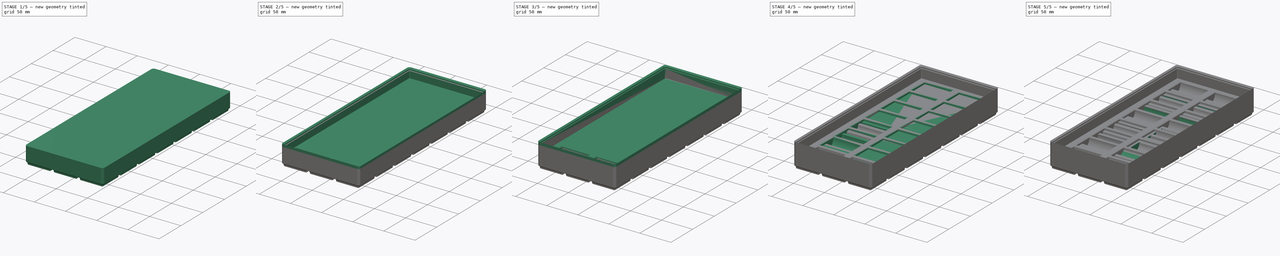
[diagram: build sequence overview — one tinted view per stage of 5, left to right]
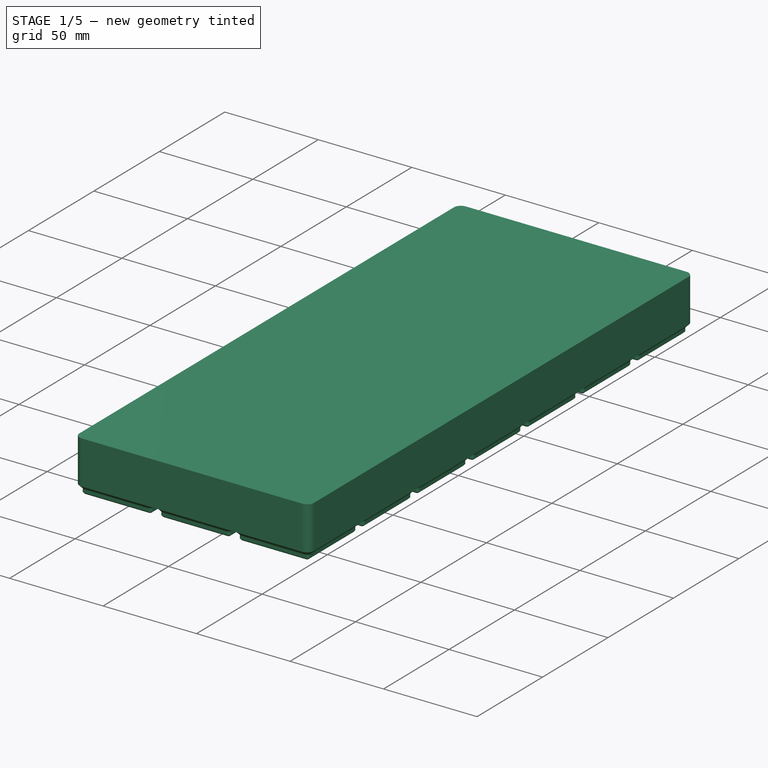
[diagram: stage 1 of 5 — iso view after this stage's code; geometry added in this stage tinted green]
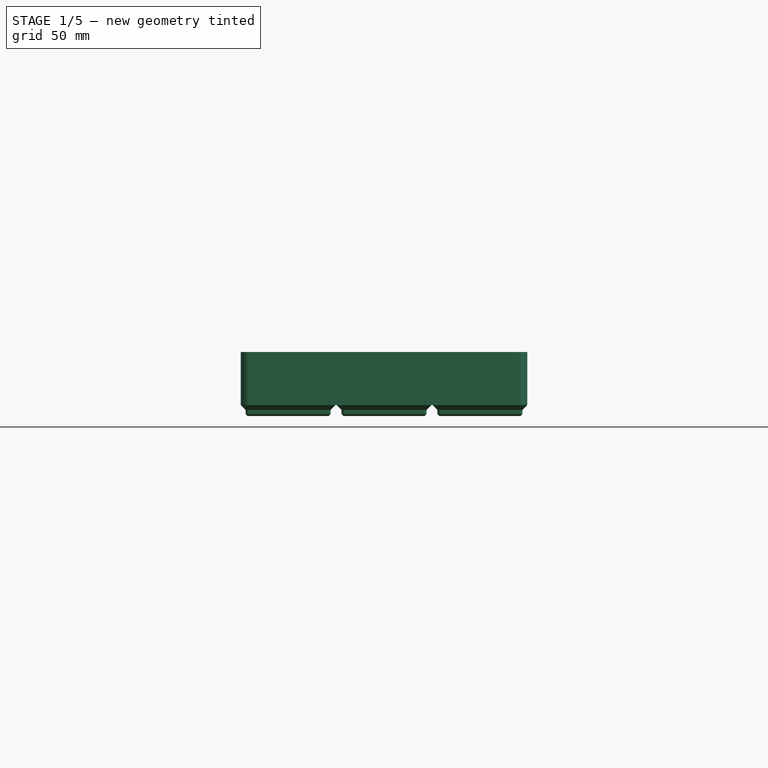
[diagram: stage 1 of 5 — front view after this stage's code; geometry added in this stage tinted green]
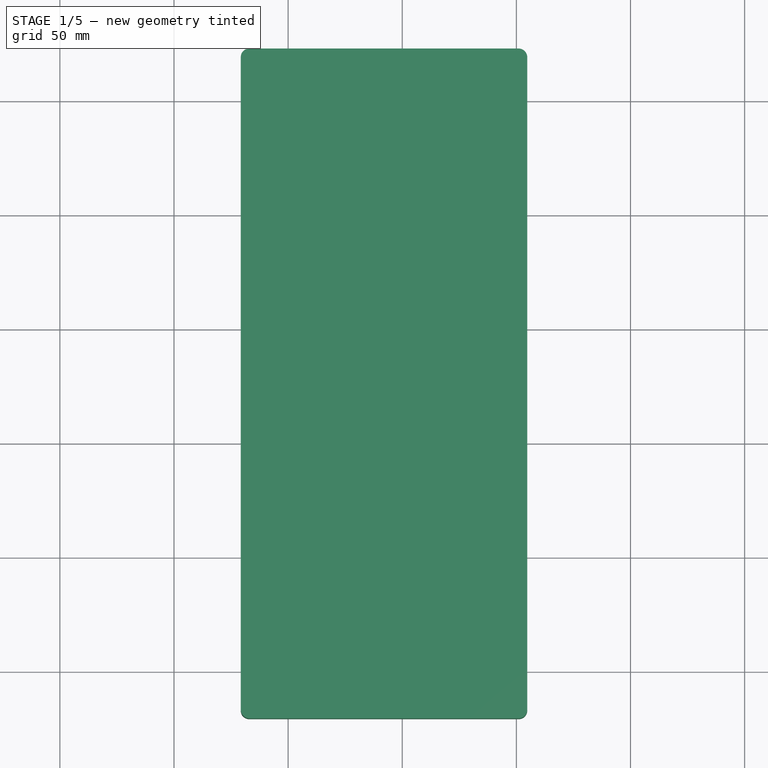
[diagram: stage 1 of 5 — top view after this stage's code; geometry added in this stage tinted green]
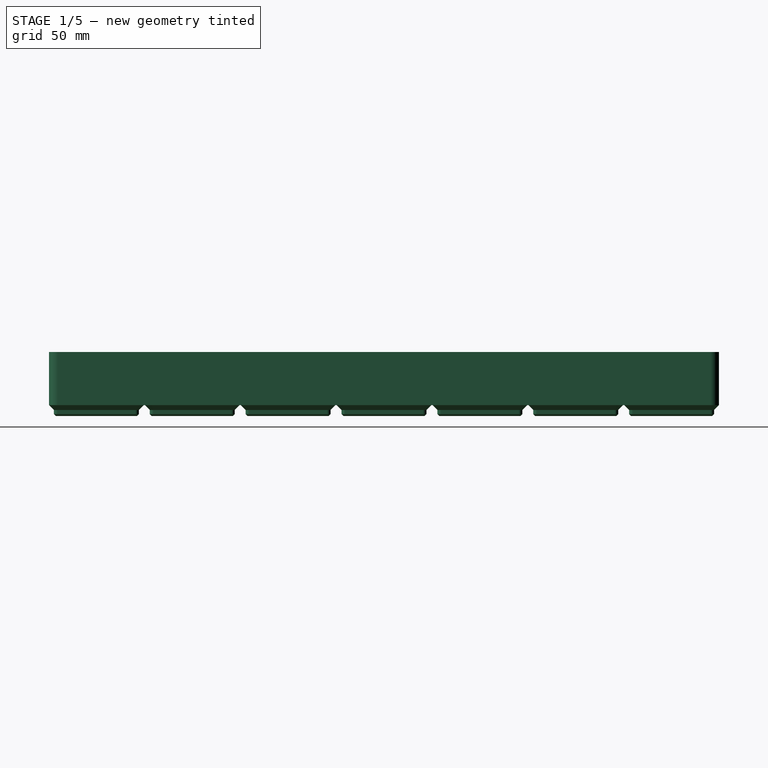
[diagram: stage 1 of 5 — right view after this stage's code; geometry added in this stage tinted green]
FCSTD DOCUMENT  (FreeCAD 1.1R20260108 (Git shallow))
Label: Gridfinity thread spol tray
License: Creative Commons Attribution 4.0
LicenseURL: https://creativecommons.org/licenses/by/4.0/
objects: Sketcher::SketchObject×11, PartDesign::Groove×6, PartDesign::LinearPattern×6, PartDesign::Pad×4, PartDesign::Body×4, App::Point×4, Part::Part2DObjectPython×3, PartDesign::Chamfer×3, PartDesign::FeatureBase×3, App::VarSet×2, PartDesign::FeaturePython×1, PartDesign::SubShapeBinder×1, PartDesign::AdditiveLoft×1, PartDesign::Pocket×1
note: 95 computed .brp shape members not serialized (recipe doc carries the construction recipe); baked Part::Feature solids carry a one-line shape summary decoded from their .brp

FEATURE [Sketcher::SketchObject] Sketch
  ArcFitTolerance = 1e-06
  AttachmentSupport = -> [XY_Plane]
  ExternalTypes = [0]
  FullyConstrained = true
  MakeInternals = false
  MapMode = 5
  sketch-geometry (10):
    g0: LineSegment StartX=-17.8 StartY=17 StartZ=0 EndX=-17.8 EndY=-17 EndZ=0
    g1: LineSegment StartX=-17 StartY=-17.8 StartZ=0 EndX=17 EndY=-17.8 EndZ=0
    g2: LineSegment StartX=17.8 StartY=-17 StartZ=0 EndX=17.8 EndY=17 EndZ=0
    g3: LineSegment StartX=17 StartY=17.8 StartZ=0 EndX=-17 EndY=17.8 EndZ=0
    g4: ArcOfCircle CenterX=-17 CenterY=17 CenterZ=0 NormalX=0 NormalY=0 NormalZ=1 AngleXU=0 Radius=0.8 StartAngle=1.5708 EndAngle=3.14159
    g5: ArcOfCircle CenterX=-17 CenterY=-17 CenterZ=0 NormalX=0 NormalY=0 NormalZ=1 AngleXU=0 Radius=0.8 StartAngle=3.14159 EndAngle=4.71239
    g6: ArcOfCircle CenterX=17 CenterY=-17 CenterZ=0 NormalX=0 NormalY=0 NormalZ=1 AngleXU=0 Radius=0.8 StartAngle=4.71239 EndAngle=6.28319
    g7: ArcOfCircle CenterX=17 CenterY=17 CenterZ=0 NormalX=0 NormalY=0 NormalZ=1 AngleXU=0 Radius=0.8 StartAngle=9.76e-14 EndAngle=1.5708
    g8: GeomPoint [constr] X=-17.8 Y=17.8 Z=0
    g9: GeomPoint [constr] X=17.8 Y=-17.8 Z=0
  constraints (23):
    c: Tangent(g0,g4) = -1.5708
    c: Tangent(g0,g5) = -1.5708
    c: Tangent(g1,g5) = -1.5708
    c: Tangent(g1,g6) = -1.5708
    c: Tangent(g2,g6) = -1.5708
    c: Tangent(g2,g7) = -1.5708
    c: Tangent(g3,g7) = -1.5708
    c: Tangent(g3,g4) = -1.5708
    c: Vertical(g0)
    c: Vertical(g2)
    c: Horizontal(g1)
    c: Horizontal(g3)
    c: Equal(g4,g5)
    c: Equal(g5,g6)
    c: Equal(g6,g7)
    c: PointOnObject(g8,g0)
    c: PointOnObject(g8,g3)
    c: PointOnObject(g9,g1)
    c: PointOnObject(g9,g2)
    c: Symmetric(g8,g9,g-1)
    c: Equal(g3,g2)
    c: DistanceY(g9,g8) = 35.6
    c: Diameter(g5) = 1.6
FEATURE [PartDesign::Pad] Pad
  Direction = (0,0,1)
  Length = 0.8
  Length2 = 10
  Profile = -> Sketch
  ReferenceAxis = -> Sketch [N_Axis]
  SideType = 0
  Suppressed = false
  TaperAngle = 45
  Type = 0
  Type2 = 0
FEATURE [PartDesign::Pad] Pad001
  BaseFeature = -> Pad
  Direction = (0,0,1)
  Length = 1.8
  Length2 = 10
  Profile = -> Pad [Edge3,Edge24,Edge22,Edge19,Edge16,Edge13,Edge10,Edge7]
  SideType = 0
  Suppressed = false
  Type = 0
  Type2 = 0
FEATURE [PartDesign::Pad] Pad002
  BaseFeature = -> Pad001
  Direction = (0,0,1)
  Length = 2.15
  Length2 = 10
  Profile = -> Pad001 [Edge16,Edge31,Edge32,Edge33,Edge34,Edge35,Edge36,Edge29]
  SideType = 0
  Suppressed = false
  TaperAngle = 45
  Type = 0
  Type2 = 0
FEATURE [App::VarSet] VarSet  label="Data"
  Length = 7
  Tray_Height = 4
  Width = 3
FEATURE [Part::Part2DObjectPython] LinearArray  label="LinearArrayX"  # Draft 2D object (typed FeaturePython)
  Alignment = 0
  AttacherType = Attacher::AttachEngine3D
  CellStart = A1
  Count = 3
  Dir = (1,0,0)
  DirIsDriven = true
  DistributionLaw = 0
  DrivenProperty = 1
  EndInclusive = true
  ExposePlacement = false
  GeneratorMode = 1
  Link = -> Pad002
  LinkSubelement = Edge6
  MarkerShape = 1
  MarkerSize = 5
  NumElements = 3
  OrientMode = 1
  Point = (-17,-17.8,0)
  PointIsDriven = true
  Reverse = false
  SpanEnd = 34
  SpanStart = 0
  Step = 42
  SubLink = -> Pad002 [Edge6]
  Type = lattice2LinearArray.LinearArray
  VSGVersion = 1
  Values = 0.0 | 42.0 | 84.0
  ValuesSource = 2
  isLattice = 1
  expr: Count = <<Data>>.Width
FEATURE [Part::Part2DObjectPython] LinearArray001  label="LinearArrayY"  # Draft 2D object (typed FeaturePython)
  Alignment = 0
  AttacherType = Attacher::AttachEngine3D
  CellStart = A1
  Count = 7
  Dir = (0,1,0)
  DirIsDriven = true
  DistributionLaw = 0
  DrivenProperty = 1
  EndInclusive = true
  ExposePlacement = false
  GeneratorMode = 1
  Link = -> Pad002
  LinkSubelement = Edge1
  MarkerShape = 1
  MarkerSize = 5
  NumElements = 7
  OrientMode = 1
  Point = (-17.8,-17,0)
  PointIsDriven = true
  Reverse = true
  SpanEnd = 34
  SpanStart = 0
  Step = 42
  SubLink = -> Pad002 [Edge1]
  Type = lattice2LinearArray.LinearArray
  VSGVersion = 1
  Values = 0.0 | 42.0 | 84.0 | 126.0 | 168.0 | 210.0 | 252.0
  ValuesSource = 2
  isLattice = 1
  expr: Count = <<Data>>.Length
FEATURE [Part::Part2DObjectPython] Populate  label="Gridfinity array"  # Draft 2D object (typed FeaturePython)
  AttacherType = Attacher::AttachEngine3D
  Copying = 0
  ExposePlacement = false
  MarkerShape = 1
  MarkerSize = 5
  NumElements = 21
  Object = -> LinearArray
  OutputCompounding = 0
  PlacementsTo = -> LinearArray001
  Referencing = 1
  Type = lattice2PopulateCopies.LatticePopulateCopies
  isLattice = 1
FEATURE [PartDesign::FeaturePython] LatticePattern  label="Gridfinity foundation"  # WARN: FeaturePython — macro-defined, semantics opaque (R4)
  AllowBaseFeature = true
  BaseFeature = -> Pad002
  Debug = false
  FeaturesToCopy = -> [Pad002,Pad,Pad001]
  IgnoreUnsupported = false
  PlacementsTo = -> Populate
  Referencing = 1
  Selfintersections = false
  SignOverride = 0
  SkipFirstInBody = false
  Suppressed = false
FEATURE [Sketcher::SketchObject] Sketch001
  ArcFitTolerance = 1e-06
  AttachmentSupport = -> [Pad002]
  ExternalGeometry = -> [Pad002]
  ExternalTypes = [0]
  FullyConstrained = true
  MakeInternals = false
  MapMode = 5
  Placement = pos=(0,0,4.75) rot=(0,0,1;0rad)
  expr: Constraints[25] = <<Data>>.Width * 42 - 0.5
  expr: Constraints[26] = <<Data>>.Length * 42 - 0.5
  sketch-geometry (8):
    g0: ArcOfCircle CenterX=-17 CenterY=-17 CenterZ=0 NormalX=0 NormalY=0 NormalZ=1 AngleXU=0 Radius=3.75 StartAngle=3.14159 EndAngle=4.71239
    g1: LineSegment StartX=-20.75 StartY=-17 StartZ=0 EndX=-20.75 EndY=269 EndZ=0
    g2: LineSegment StartX=-17 StartY=-20.75 StartZ=0 EndX=101 EndY=-20.75 EndZ=0
    g3: ArcOfCircle CenterX=-17 CenterY=269 CenterZ=0 NormalX=0 NormalY=0 NormalZ=1 AngleXU=0 Radius=3.75 StartAngle=1.5708 EndAngle=3.14159
    g4: ArcOfCircle CenterX=101 CenterY=-17 CenterZ=0 NormalX=0 NormalY=0 NormalZ=1 AngleXU=0 Radius=3.75 StartAngle=4.71239 EndAngle=6.28319
    g5: LineSegment StartX=-17 StartY=272.75 StartZ=0 EndX=101 EndY=272.75 EndZ=0
    g6: ArcOfCircle CenterX=101 CenterY=269 CenterZ=0 NormalX=0 NormalY=0 NormalZ=1 AngleXU=0 Radius=3.75 StartAngle=0 EndAngle=1.5708
    g7: LineSegment StartX=104.75 StartY=269 StartZ=0 EndX=104.75 EndY=-17 EndZ=0
  constraints (27):
    c: Coincident(g0,g-3)
    c: Vertical(g0,g0)
    c: Horizontal(g0,g0)
    c: Equal(g-3,g0)
    c: Coincident(g1,g0)
    c: Vertical(g1)
    c: Coincident(g2,g0)
    c: Horizontal(g2)
    c: Coincident(g3,g1)
    c: Coincident(g4,g2)
    c: Vertical(g4,g2)
    c: Horizontal(g4,g4)
    c: Horizontal(g1,g3)
    c: Vertical(g3,g3)
    c: Equal(g0,g3)
    c: Equal(g0,g4)
    c: Coincident(g5,g3)
    c: Horizontal(g5)
    c: Vertical(g5,g2)
    c: Coincident(g6,g5)
    c: Vertical(g5,g6)
    c: Horizontal(g6,g6)
    c: Coincident(g7,g6)
    c: Coincident(g7,g4)
    c: Equal(g0,g6)
    c: DistanceX(g0,g4) = 125.5
    c: DistanceY(g2,g5) = 293.5
FEATURE [PartDesign::Pad] Pad003  label="Tray"
  BaseFeature = -> LatticePattern
  Direction = (0,0,1)
  Length = 23.25
  Length2 = 10
  Profile = -> Sketch001
  ReferenceAxis = -> Sketch001 [N_Axis]
  SideType = 0
  Suppressed = false
  Type = 0
  Type2 = 0
  expr: Length = <<Data>>.Tray_Height * 7 - 4.75
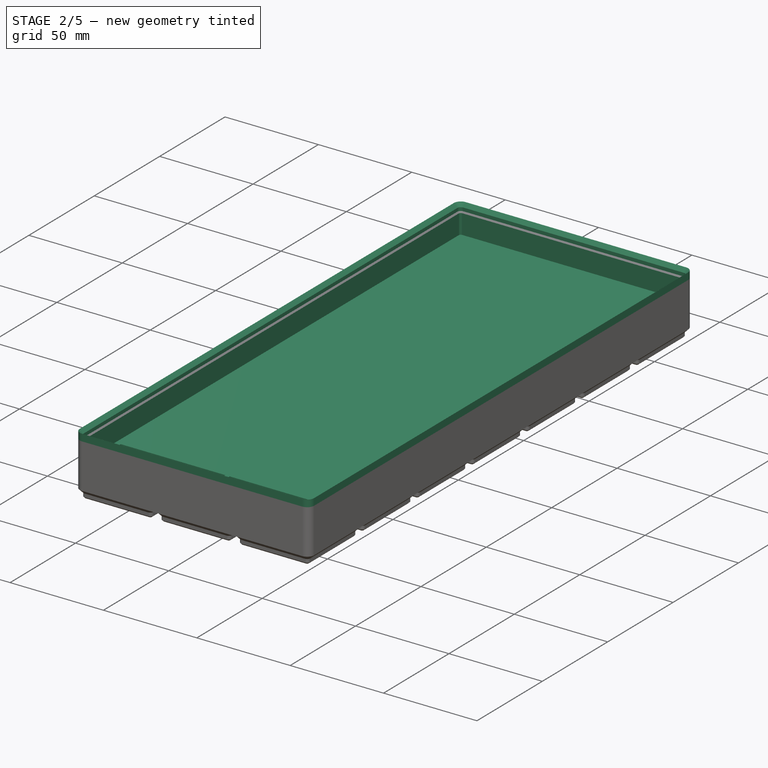
[diagram: stage 2 of 5 — iso view after this stage's code; geometry added in this stage tinted green]
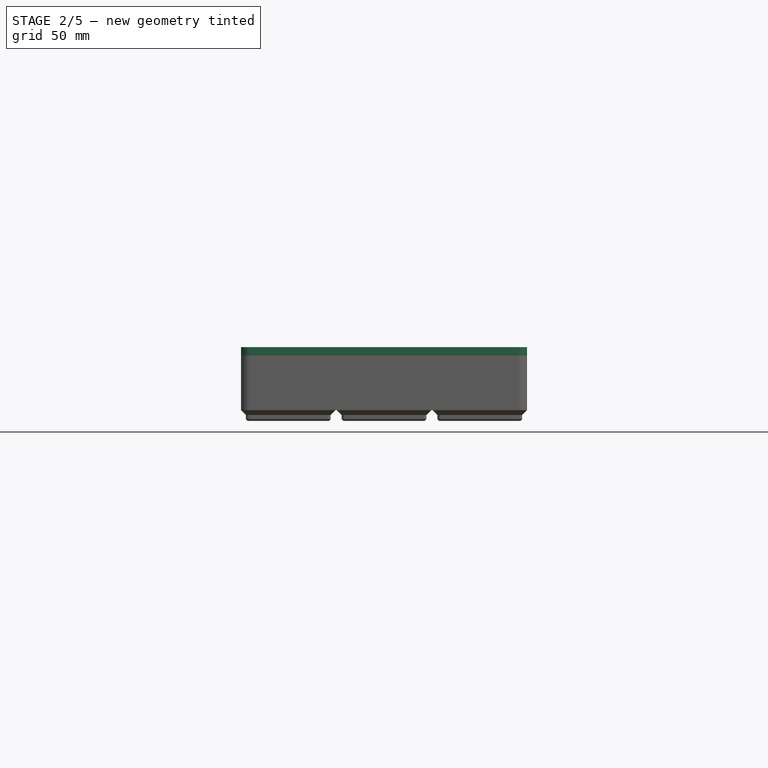
[diagram: stage 2 of 5 — front view after this stage's code; geometry added in this stage tinted green]
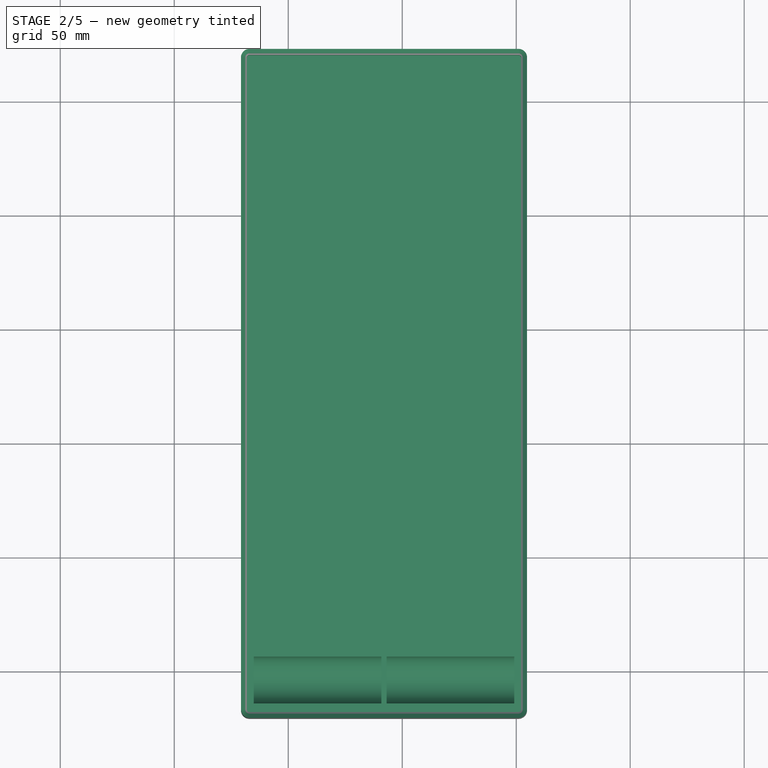
[diagram: stage 2 of 5 — top view after this stage's code; geometry added in this stage tinted green]
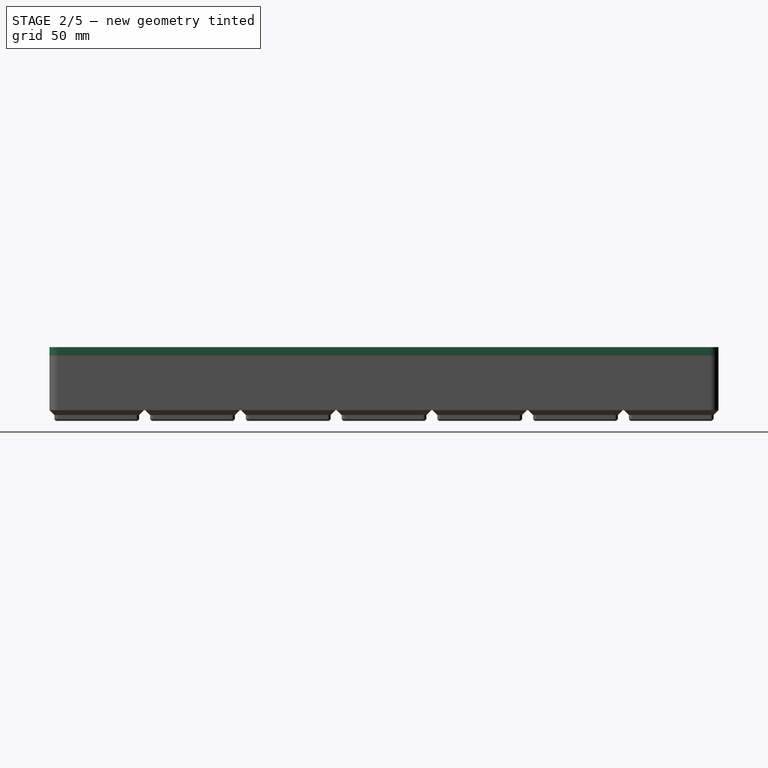
[diagram: stage 2 of 5 — right view after this stage's code; geometry added in this stage tinted green]
FEATURE [Sketcher::SketchObject] Sketch002
  ArcFitTolerance = 1e-06
  AttachmentSupport = -> [Pad003]
  ExternalGeometry = -> [Pad003]
  ExternalTypes = [0]
  FullyConstrained = true
  MakeInternals = false
  MapMode = 5
  Placement = pos=(0,0,28) rot=(0,0,1;0rad)
  sketch-geometry (16):
    g0: ArcOfCircle CenterX=-17 CenterY=269 CenterZ=0 NormalX=0 NormalY=0 NormalZ=1 AngleXU=0 Radius=3.75 StartAngle=1.5708 EndAngle=3.14159
    g1: ArcOfCircle CenterX=101 CenterY=269 CenterZ=0 NormalX=0 NormalY=0 NormalZ=1 AngleXU=0 Radius=3.75 StartAngle=0 EndAngle=1.5708
    g2: ArcOfCircle CenterX=101 CenterY=-17 CenterZ=0 NormalX=0 NormalY=0 NormalZ=1 AngleXU=0 Radius=3.75 StartAngle=4.71239 EndAngle=6.28319
    g3: ArcOfCircle CenterX=-17 CenterY=-17 CenterZ=0 NormalX=0 NormalY=0 NormalZ=1 AngleXU=0 Radius=3.75 StartAngle=3.14159 EndAngle=4.71239
    g4: LineSegment StartX=-17 StartY=272.75 StartZ=0 EndX=101 EndY=272.75 EndZ=0
    g5: LineSegment StartX=104.75 StartY=269 StartZ=0 EndX=104.75 EndY=-17 EndZ=0
    g6: LineSegment StartX=101 StartY=-20.75 StartZ=0 EndX=-17 EndY=-20.75 EndZ=0
    g7: LineSegment StartX=-20.75 StartY=-17 StartZ=0 EndX=-20.75 EndY=269 EndZ=0
    g8: LineSegment StartX=-18.15 StartY=-17 StartZ=0 EndX=-18.15 EndY=269 EndZ=0
    g9: ArcOfCircle CenterX=-17 CenterY=269 CenterZ=0 NormalX=0 NormalY=0 NormalZ=1 AngleXU=0 Radius=1.15 StartAngle=1.5708 EndAngle=3.14159
    g10: LineSegment StartX=-17 StartY=270.15 StartZ=0 EndX=101 EndY=270.15 EndZ=0
    g11: ArcOfCircle CenterX=101 CenterY=269 CenterZ=0 NormalX=0 NormalY=0 NormalZ=1 AngleXU=0 Radius=1.15 StartAngle=4.4e-15 EndAngle=1.5708
    g12: LineSegment StartX=102.15 StartY=269 StartZ=0 EndX=102.15 EndY=-17 EndZ=0
    g13: ArcOfCircle CenterX=101 CenterY=-17 CenterZ=0 NormalX=0 NormalY=0 NormalZ=1 AngleXU=0 Radius=1.15 StartAngle=4.71239 EndAngle=6.28319
    g14: LineSegment StartX=101 StartY=-18.15 StartZ=0 EndX=-17 EndY=-18.15 EndZ=0
    g15: ArcOfCircle CenterX=-17 CenterY=-17 CenterZ=0 NormalX=0 NormalY=0 NormalZ=1 AngleXU=0 Radius=1.15 StartAngle=3.14159 EndAngle=4.71239
  constraints (39):
    c: Coincident(g0,g-3)
    c: Coincident(g2,g-4)
    c: Horizontal(g0,g0)
    c: Horizontal(g1,g1)
    c: Horizontal(g2,g2)
    c: Horizontal(g3,g3)
    c: Vertical(g0,g0)
    c: Vertical(g1,g1)
    c: Vertical(g2,g2)
    c: Vertical(g3,g3)
    c: Vertical(g0,g3)
    c: Vertical(g1,g2)
    c: Horizontal(g3,g2)
    c: Horizontal(g0,g1)
    c: Equal(g0,g-3)
    c: Tangent(g5,g1) = 1.5708
    c: Coincident(g5,g2)
    c: Tangent(g6,g2) = 1.5708
    c: Coincident(g6,g3)
    c: Coincident(g7,g3)
    c: Tangent(g7,g0) = 1.5708
    c: Coincident(g4,g1)
    c: Coincident(g4,g0)
    c: Tangent(g8,g9) = 1.5708
    c: Tangent(g8,g15) = 1.5708
    c: Tangent(g9,g10) = 1.5708
    c: Tangent(g10,g11) = 1.5708
    c: Tangent(g11,g12) = 1.5708
    c: Tangent(g12,g13) = 1.5708
    c: Tangent(g13,g14) = 1.5708
    c: Tangent(g14,g15) = 1.5708
    c: Coincident(g9,g0)
    c: DistanceX(g0,g8) = 2.6
    c: Coincident(g11,g1)
    c: Coincident(g2,g13)
    c: Vertical(g12)
    c: Horizontal(g14)
    c: Coincident(g3,g15)
    c: Vertical(g8)
FEATURE [Sketcher::SketchObject] Sketch003
  ArcFitTolerance = 1e-06
  AttachmentOffset = pos=(0,0,0.7) rot=(0,0,1;0rad)
  AttachmentSupport = -> [Pad003]
  ExternalGeometry = -> [Pad003]
  ExternalTypes = [0]
  FullyConstrained = true
  MakeInternals = false
  MapMode = 5
  Placement = pos=(0,0,28.7) rot=(0,0,1;0rad)
  sketch-geometry (16):
    g0: ArcOfCircle CenterX=-17 CenterY=269 CenterZ=0 NormalX=0 NormalY=0 NormalZ=1 AngleXU=0 Radius=3.75 StartAngle=1.5708 EndAngle=3.14159
    g1: ArcOfCircle CenterX=101 CenterY=269 CenterZ=0 NormalX=0 NormalY=0 NormalZ=1 AngleXU=0 Radius=3.75 StartAngle=0 EndAngle=1.5708
    g2: ArcOfCircle CenterX=101 CenterY=-17 CenterZ=0 NormalX=0 NormalY=0 NormalZ=1 AngleXU=0 Radius=3.75 StartAngle=4.71239 EndAngle=6.28319
    g3: ArcOfCircle CenterX=-17 CenterY=-17 CenterZ=0 NormalX=0 NormalY=0 NormalZ=1 AngleXU=0 Radius=3.75 StartAngle=3.14159 EndAngle=4.71239
    g4: LineSegment StartX=-17 StartY=272.75 StartZ=0 EndX=101 EndY=272.75 EndZ=0
    g5: LineSegment StartX=104.75 StartY=269 StartZ=0 EndX=104.75 EndY=-17 EndZ=0
    g6: LineSegment StartX=101 StartY=-20.75 StartZ=0 EndX=-17 EndY=-20.75 EndZ=0
    g7: LineSegment StartX=-20.75 StartY=-17 StartZ=0 EndX=-20.75 EndY=269 EndZ=0
    g8: LineSegment StartX=-18.85 StartY=-17 StartZ=0 EndX=-18.85 EndY=269 EndZ=0
    g9: ArcOfCircle CenterX=-17 CenterY=269 CenterZ=0 NormalX=0 NormalY=0 NormalZ=1 AngleXU=0 Radius=1.85 StartAngle=1.5708 EndAngle=3.14159
    g10: LineSegment StartX=-17 StartY=270.85 StartZ=0 EndX=101 EndY=270.85 EndZ=0
    g11: ArcOfCircle CenterX=101 CenterY=269 CenterZ=0 NormalX=0 NormalY=0 NormalZ=1 AngleXU=0 Radius=1.85 StartAngle=4.4e-15 EndAngle=1.5708
    g12: LineSegment StartX=102.85 StartY=269 StartZ=0 EndX=102.85 EndY=-17 EndZ=0
    g13: ArcOfCircle CenterX=101 CenterY=-17 CenterZ=0 NormalX=0 NormalY=0 NormalZ=1 AngleXU=0 Radius=1.85 StartAngle=4.71239 EndAngle=6.28319
    g14: LineSegment StartX=101 StartY=-18.85 StartZ=0 EndX=-17 EndY=-18.85 EndZ=0
    g15: ArcOfCircle CenterX=-17 CenterY=-17 CenterZ=0 NormalX=0 NormalY=0 NormalZ=1 AngleXU=0 Radius=1.85 StartAngle=3.14159 EndAngle=4.71239
  constraints (39):
    c: Horizontal(g3,g3)
    c: Horizontal(g3,g2)
    c: Horizontal(g2,g2)
    c: Horizontal(g0,g1)
    c: Horizontal(g1,g1)
    c: Horizontal(g0,g0)
    c: Vertical(g0,g0)
    c: Vertical(g1,g1)
    c: Vertical(g2,g2)
    c: Vertical(g3,g3)
    c: Vertical(g0,g3)
    c: Vertical(g1,g2)
    c: Equal(g0,g-3)
    c: Coincident(g2,g-4)
    c: Coincident(g0,g-3)
    c: Tangent(g4,g0) = 1.5708
    c: Coincident(g4,g1)
    c: Tangent(g5,g1) = 1.5708
    c: Coincident(g5,g2)
    c: Coincident(g6,g2)
    c: Tangent(g6,g3) = 1.5708
    c: Coincident(g7,g3)
    c: Coincident(g7,g0)
    c: Tangent(g8,g9) = 1.5708
    c: Tangent(g8,g15) = 1.5708
    c: Tangent(g9,g10) = 1.5708
    c: Tangent(g10,g11) = 1.5708
    c: Tangent(g11,g12) = 1.5708
    c: Tangent(g12,g13) = 1.5708
    c: Tangent(g13,g14) = 1.5708
    c: Tangent(g14,g15) = 1.5708
    c: Vertical(g8)
    c: Vertical(g12)
    c: Horizontal(g10)
    c: Coincident(g2,g13)
    c: Coincident(g9,g0)
    c: Coincident(g11,g1)
    c: Coincident(g3,g15)
    c: DistanceX(g0,g8) = 1.9
FEATURE [PartDesign::SubShapeBinder] Binder
  BindCopyOnChange = 0
  BindMode = 0
  ClaimChildren = false
  Context = -> Body [Binder.]
  Fuse = false
  MakeFace = true
  OffsetFill = false
  OffsetIntersection = false
  OffsetJoinType = 0
  OffsetOpenResult = false
  PartialLoad = false
  Placement = pos=(0,0,3.7) rot=(0,0,1;0rad)
  Relative = true
  Support = -> [Sketch003]
  _Version = 2
FEATURE [PartDesign::AdditiveLoft] AdditiveLoft  label="Lip Loft intermediate"
  BaseFeature = -> Pad003
  Closed = false
  Profile = -> Sketch002
  Ruled = true
  Sections = -> [Sketch003,Binder]
  Suppressed = false
FEATURE [PartDesign::Chamfer] Chamfer  label="Lip"
  Angle = 45
  Base = -> AdditiveLoft [Edge1217]
  BaseFeature = -> AdditiveLoft
  ChamferType = 0
  FlipDirection = false
  Size = 1.89
  Size2 = 1
  SupportTransform = false
  Suppressed = false
  UseAllEdges = false
FEATURE [Sketcher::SketchObject] Sketch004
  ArcFitTolerance = 1e-06
  AttachmentSupport = -> [Chamfer]
  ExternalGeometry = -> [Chamfer]
  ExternalTypes = [0]
  FullyConstrained = true
  MakeInternals = false
  MapMode = 5
  Placement = pos=(0,0,28) rot=(0,0,1;0rad)
  sketch-geometry (8):
    g0: ArcOfCircle CenterX=-17 CenterY=269 CenterZ=0 NormalX=0 NormalY=0 NormalZ=1 AngleXU=0 Radius=1.15 StartAngle=1.5708 EndAngle=3.14159
    g1: ArcOfCircle CenterX=101 CenterY=269 CenterZ=0 NormalX=0 NormalY=0 NormalZ=1 AngleXU=0 Radius=1.15 StartAngle=0 EndAngle=1.5708
    g2: ArcOfCircle CenterX=101 CenterY=-17 CenterZ=0 NormalX=0 NormalY=0 NormalZ=1 AngleXU=0 Radius=1.15 StartAngle=4.71239 EndAngle=6.28319
    g3: ArcOfCircle CenterX=-17 CenterY=-17 CenterZ=0 NormalX=0 NormalY=0 NormalZ=1 AngleXU=0 Radius=1.15 StartAngle=3.14159 EndAngle=4.71239
    g4: LineSegment StartX=-18.15 StartY=269 StartZ=0 EndX=-18.15 EndY=-17 EndZ=0
    g5: LineSegment StartX=-17 StartY=270.15 StartZ=0 EndX=101 EndY=270.15 EndZ=0
    g6: LineSegment StartX=102.15 StartY=269 StartZ=0 EndX=102.15 EndY=-17 EndZ=0
    g7: LineSegment StartX=101 StartY=-18.15 StartZ=0 EndX=-17 EndY=-18.15 EndZ=0
  constraints (22):
    c: Coincident(g0,g-3)
    c: Coincident(g2,g-4)
    c: Horizontal(g3,g3)
    c: Horizontal(g0,g0)
    c: Horizontal(g1,g1)
    c: Horizontal(g2,g2)
    c: Horizontal(g0,g1)
    c: Horizontal(g3,g2)
    c: Vertical(g3,g3)
    c: Vertical(g0,g-3)
    c: Vertical(g1,g1)
    c: Vertical(g2,g2)
    c: Vertical(g0,g3)
    c: Equal(g-3,g0)
    c: Tangent(g4,g0) = -1.5708
    c: Coincident(g4,g3)
    c: Tangent(g5,g0) = 1.5708
    c: Coincident(g5,g1)
    c: Tangent(g6,g1) = 1.5708
    c: Coincident(g6,g2)
    c: Tangent(g7,g2) = 1.5708
    c: Coincident(g7,g3)
FEATURE [PartDesign::Pocket] Pocket
  BaseFeature = -> Chamfer
  Direction = (0,0,-1)
  Length = 10.5
  Length2 = 5
  Profile = -> Sketch004
  ReferenceAxis = -> Sketch004 [N_Axis]
  SideType = 0
  Suppressed = false
  Type = 0
  Type2 = 0
  expr: Length = (<<Data>>.Tray_Height - 1) * 3.5
FEATURE [PartDesign::Body] Body002  label="Thread pool tray 2"
  AllowCompound = false
  Group = -> [BaseFeature,Sketch010,Groove005,Chamfer001,LinearPattern004]
  Origin = -> Origin004
  Tip = -> LinearPattern004
FEATURE [App::Point] Origin007  label="Origin008"
  Role = Origin
FEATURE [PartDesign::FeatureBase] Clone001  label="Gridfinity tray clone 4 height 3x7"
  BaseFeature = -> Pocket
  Suppressed = false
FEATURE [Sketcher::SketchObject] Sketch011
  ArcFitTolerance = 1e-06
  AttachmentSupport = -> [Clone001]
  ExternalGeometry = -> [Clone001]
  ExternalTypes = [0,0]
  FullyConstrained = true
  MakeInternals = false
  MapMode = 5
  Placement = pos=(0,0,17.5) rot=(0,0,1;0rad)
  sketch-geometry (11):
    g0: LineSegment StartX=99.15 StartY=-14.15 StartZ=0 EndX=99.15 EndY=-3.9 EndZ=0
    g1: LineSegment StartX=99.15 StartY=-3.9 StartZ=0 EndX=43.15 EndY=-3.9 EndZ=0
    g2: LineSegment StartX=43.15 StartY=-3.9 StartZ=0 EndX=43.15 EndY=-14.15 EndZ=0
    g3: LineSegment StartX=43.15 StartY=-14.15 StartZ=0 EndX=99.15 EndY=-14.15 EndZ=0
    g4: LineSegment StartX=40.85 StartY=-3.9 StartZ=0 EndX=-15.15 EndY=-3.9 EndZ=0
    g5: LineSegment StartX=-15.15 StartY=-3.9 StartZ=0 EndX=-15.15 EndY=-14.15 EndZ=0
    g6: LineSegment StartX=-15.15 StartY=-14.15 StartZ=0 EndX=40.85 EndY=-14.15 EndZ=0
    g7: LineSegment StartX=40.85 StartY=-14.15 StartZ=0 EndX=40.85 EndY=-3.9 EndZ=0
    g8: LineSegment [constr] StartX=43.15 StartY=-3.9 StartZ=0 EndX=43.15 EndY=6.35 EndZ=0
    g9: LineSegment [constr] StartX=43.15 StartY=6.35 StartZ=0 EndX=99.15 EndY=6.35 EndZ=0
    g10: LineSegment [constr] StartX=99.15 StartY=6.35 StartZ=0 EndX=99.15 EndY=-3.9 EndZ=0
  constraints (32):
    c: Coincident(g0,g1)
    c: Coincident(g1,g2)
    c: Coincident(g2,g3)
    c: Coincident(g3,g0)
    c: Vertical(g0)
    c: Vertical(g2)
    c: Horizontal(g1)
    c: Horizontal(g3)
    c: Distance(g0,g2) = 56
    c: Coincident(g4,g5)
    c: Coincident(g5,g6)
    c: Coincident(g6,g7)
    c: Coincident(g7,g4)
    c: Horizontal(g4)
    c: Horizontal(g6)
    c: Vertical(g5)
    c: Vertical(g7)
    c: Equal(g4,g1)
    c: Horizontal(g4,g1)
    c: Horizontal(g6,g2)
    c: Coincident(g1,g8)
    c: Vertical(g8)
    c: Coincident(g8,g9)
    c: Horizontal(g9)
    c: Coincident(g9,g10)
    c: Coincident(g10,g0)
    c: Vertical(g10)
    c: Equal(g10,g0)
    c: DistanceY(g0,g9) = 20.5
    c: DistanceY(g-4,g0) = 4
    c: DistanceX(g0,g-4) = 3
    c: DistanceX(g-3,g4) = 3
FEATURE [PartDesign::Groove] Groove006
  Angle = 360
  Angle2 = 0
  Axis = (-1,0,0)
  Base = (99.15,-3.9,17.5)
  BaseFeature = -> Clone001
  Profile = -> Sketch011 [Edge5,Edge8,Edge7,Edge6,Edge2,Edge1,Edge4,Edge3]
  ReferenceAxis = -> Sketch011 [Edge2]
  Suppressed = false
  Type = 1
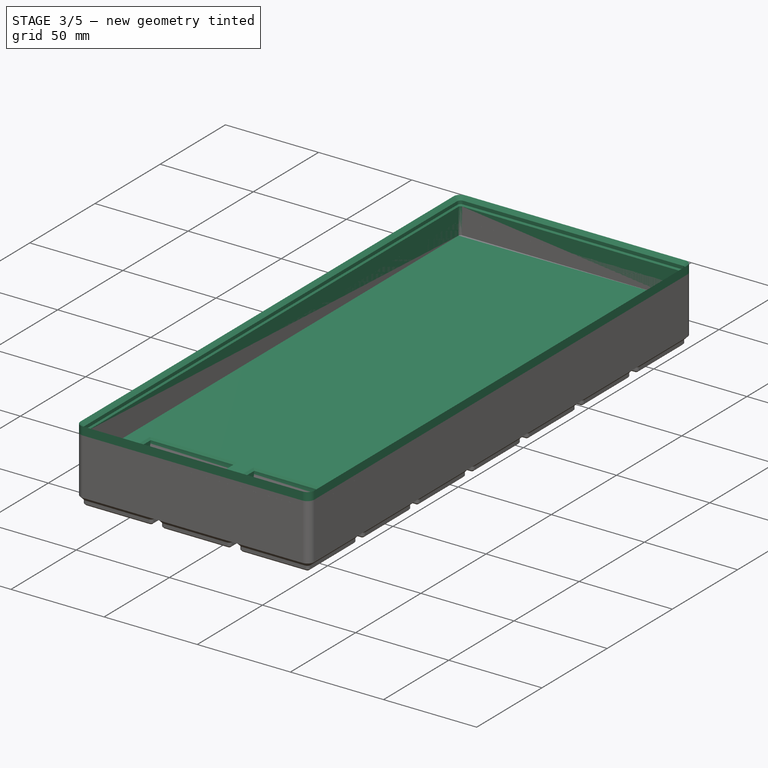
[diagram: stage 3 of 5 — iso view after this stage's code; geometry added in this stage tinted green]
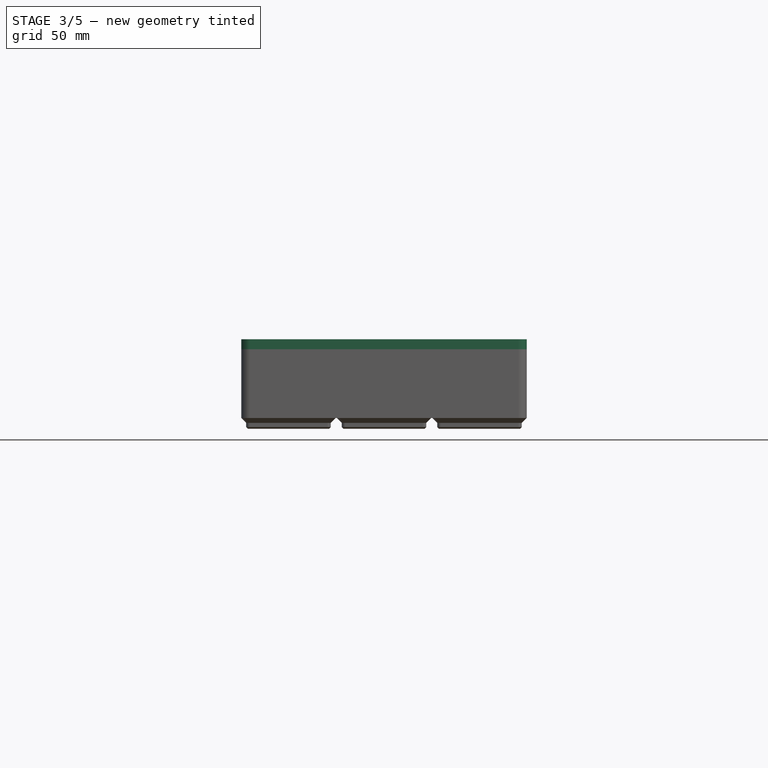
[diagram: stage 3 of 5 — front view after this stage's code; geometry added in this stage tinted green]
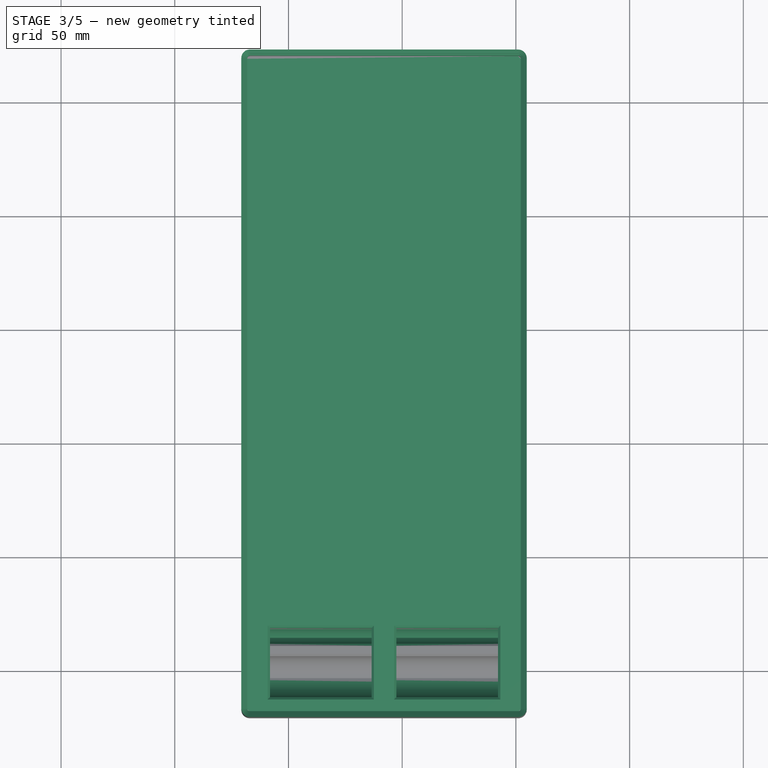
[diagram: stage 3 of 5 — top view after this stage's code; geometry added in this stage tinted green]
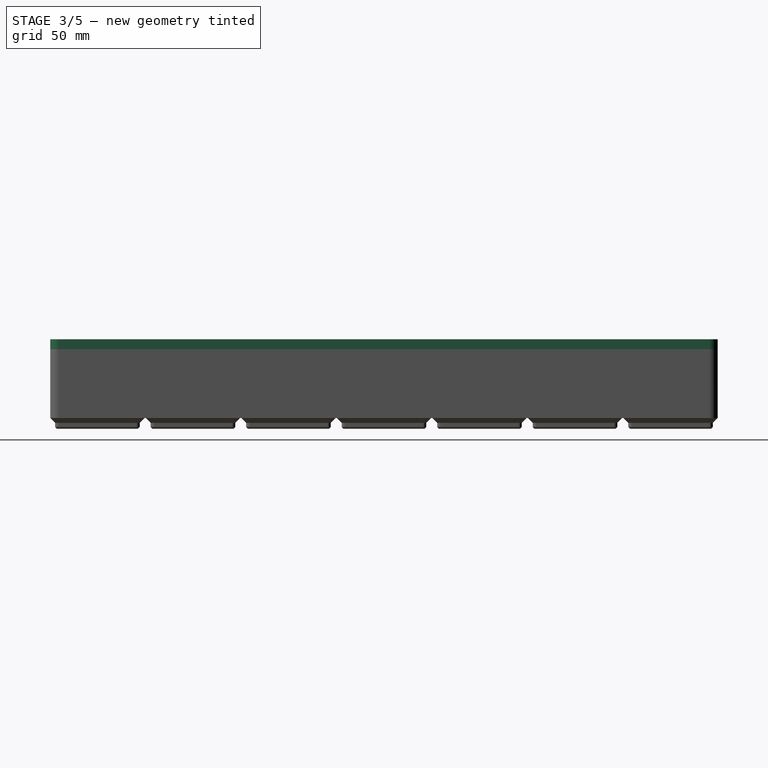
[diagram: stage 3 of 5 — right view after this stage's code; geometry added in this stage tinted green]
FEATURE [PartDesign::Body] Body001  label="Thread spool tray 1"
  AllowCompound = false
  Group = -> [Clone,Sketch005,Groove,LinearPattern,Sketch007,VarSet001,Groove002,LinearPattern001,Sketch008,Groove003,LinearPattern002,Sketch009,Groove004,LinearPattern003]
  Origin = -> Origin001
  Tip = -> LinearPattern003
FEATURE [App::Point] Origin002  label="Origin"
  Role = Origin
FEATURE [App::Point] Origin003  label="Origin"
  Role = Origin
FEATURE [App::Point] Origin005
  Role = Origin
FEATURE [PartDesign::FeatureBase] BaseFeature  label="Gridfinity tray link 5 height 3x7"
  BaseFeature = -> Pocket
  Suppressed = false
FEATURE [Sketcher::SketchObject] Sketch010
  ArcFitTolerance = 1e-06
  AttachmentSupport = -> [BaseFeature]
  ExternalGeometry = -> [BaseFeature]
  ExternalTypes = [0,0]
  FullyConstrained = true
  MakeInternals = false
  MapMode = 5
  Placement = pos=(0,0,17.5) rot=(0,0,1;0rad)
  sketch-geometry (11):
    g0: LineSegment StartX=92.15 StartY=-11.75 StartZ=0 EndX=92.15 EndY=3.5 EndZ=0
    g1: LineSegment StartX=92.15 StartY=3.5 StartZ=0 EndX=47.45 EndY=3.5 EndZ=0
    g2: LineSegment StartX=47.45 StartY=3.5 StartZ=0 EndX=47.45 EndY=-11.75 EndZ=0
    g3: LineSegment StartX=47.45 StartY=-11.75 StartZ=0 EndX=92.15 EndY=-11.75 EndZ=0
    g4: LineSegment [constr] StartX=47.45 StartY=3.5 StartZ=0 EndX=47.45 EndY=18.75 EndZ=0
    g5: LineSegment [constr] StartX=47.45 StartY=18.75 StartZ=0 EndX=92.15 EndY=18.75 EndZ=0
    g6: LineSegment [constr] StartX=92.15 StartY=18.75 StartZ=0 EndX=92.15 EndY=3.5 EndZ=0
    g7: LineSegment StartX=36.55 StartY=3.5 StartZ=0 EndX=-8.15 EndY=3.5 EndZ=0
    g8: LineSegment StartX=-8.15 StartY=3.5 StartZ=0 EndX=-8.15 EndY=-11.75 EndZ=0
    g9: LineSegment StartX=-8.15 StartY=-11.75 StartZ=0 EndX=36.55 EndY=-11.75 EndZ=0
    g10: LineSegment StartX=36.55 StartY=-11.75 StartZ=0 EndX=36.55 EndY=3.5 EndZ=0
  constraints (32):
    c: Coincident(g0,g1)
    c: Coincident(g1,g2)
    c: Coincident(g2,g3)
    c: Coincident(g3,g0)
    c: Vertical(g0)
    c: Vertical(g2)
    c: Horizontal(g1)
    c: Horizontal(g3)
    c: Distance(g0,g2) = 44.7
    c: Distance(g1,g3) = 15.25
    c: DistanceX(g0,g-4) = 10
    c: DistanceY(g-4,g0) = 6.4
    c: Coincident(g1,g4)
    c: Vertical(g4)
    c: Coincident(g4,g5)
    c: Horizontal(g5)
    c: Coincident(g5,g6)
    c: Coincident(g6,g0)
    c: Vertical(g6)
    c: Equal(g6,g0)
    c: Coincident(g7,g8)
    c: Coincident(g8,g9)
    c: Coincident(g9,g10)
    c: Coincident(g10,g7)
    c: Horizontal(g7)
    c: Horizontal(g9)
    c: Vertical(g8)
    c: Vertical(g10)
    c: Equal(g9,g3)
    c: Horizontal(g9,g2)
    c: Horizontal(g7,g1)
    c: DistanceX(g-3,g8) = 10
FEATURE [PartDesign::Groove] Groove005
  Angle = 360
  Angle2 = 0
  Axis = (-1,0,0)
  Base = (36.55,3.5,17.5)
  BaseFeature = -> BaseFeature
  Profile = -> Sketch010 [Edge5,Edge8,Edge7,Edge6,Edge2,Edge1,Edge4,Edge3]
  ReferenceAxis = -> Sketch010 [Edge5]
  Suppressed = false
  Type = 0
FEATURE [PartDesign::Chamfer] Chamfer001
  Angle = 45
  Base = -> Groove005 [?Edge371,Edge378,Edge377,Edge380,?Edge375,Edge382,Edge381,Edge384]
  BaseFeature = -> Groove005
  ChamferType = 0
  FlipDirection = false
  Size = 1
  Size2 = 1
  SupportTransform = false
  Suppressed = false
  UseAllEdges = false
FEATURE [PartDesign::Chamfer] Chamfer002
  Angle = 45
  Base = -> Groove006 [Edge371,Edge369,Edge372,Edge375,Edge374,Edge373,Edge370,Edge376]
  BaseFeature = -> Groove006
  ChamferType = 0
  FlipDirection = false
  Size = 1
  Size2 = 1
  SupportTransform = false
  Suppressed = false
  UseAllEdges = false
FEATURE [PartDesign::LinearPattern] LinearPattern005
  BaseFeature = -> Chamfer002
  Direction = -> Y_Axis003
  Direction2 = -> X_Axis003
  Length = 260
  Length2 = 100
  Mode = 1
  Mode2 = 0
  Occurrences = 11
  Occurrences2 = 1
  Offset = 26
  Offset2 = 100
  Originals = -> [Chamfer002,Groove006]
  Reversed2 = false
  SpacingPattern = [26]
  SpacingPattern2 = [0]
  Spacings = [-1,-1,-1,-1,-1,-1,-1,-1,-1,-1]
  Suppressed = false
  TransformMode = 0
FEATURE [PartDesign::Body] Body003  label="Thread pool tray 3"
  AllowCompound = false
  Group = -> [Clone001,Sketch011,Groove006,Chamfer002,LinearPattern005]
  Origin = -> Origin006
  Tip = -> LinearPattern005
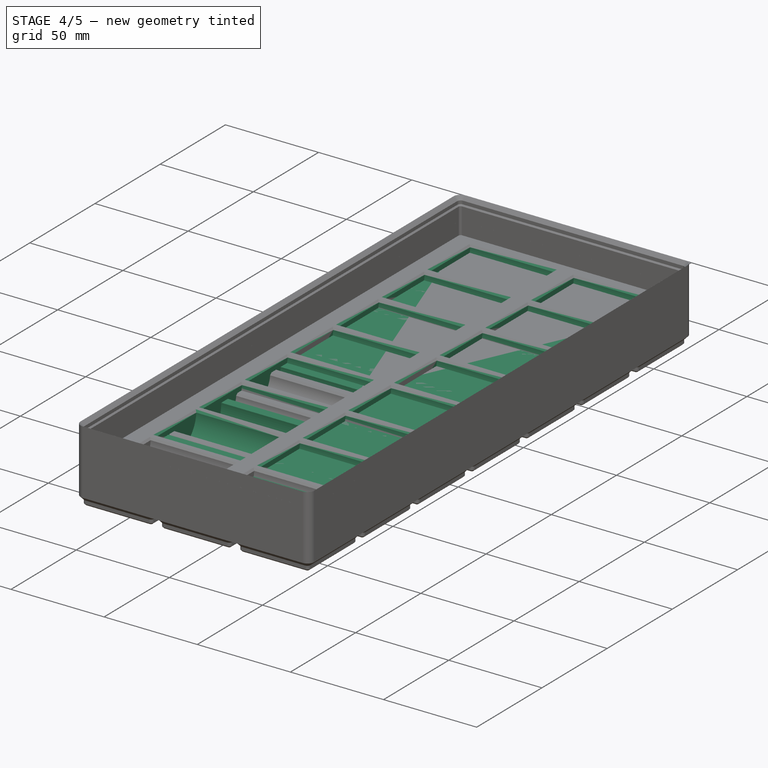
[diagram: stage 4 of 5 — iso view after this stage's code; geometry added in this stage tinted green]
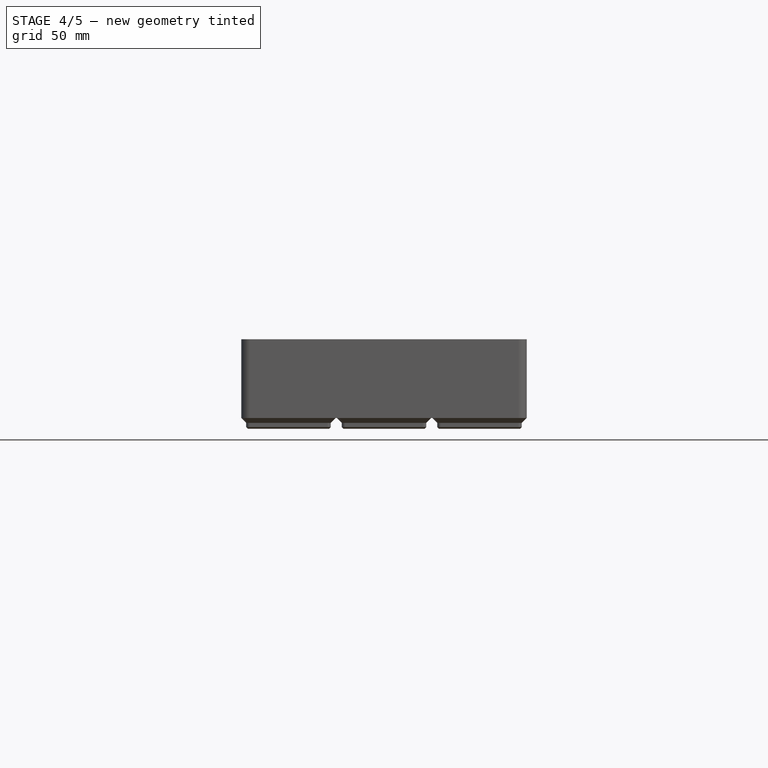
[diagram: stage 4 of 5 — front view after this stage's code; geometry added in this stage tinted green]
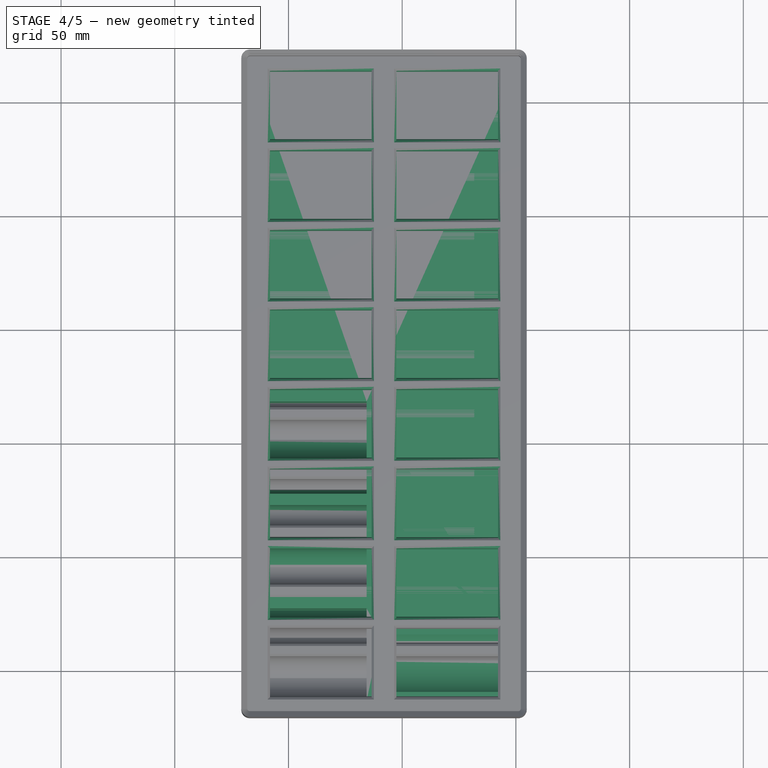
[diagram: stage 4 of 5 — top view after this stage's code; geometry added in this stage tinted green]
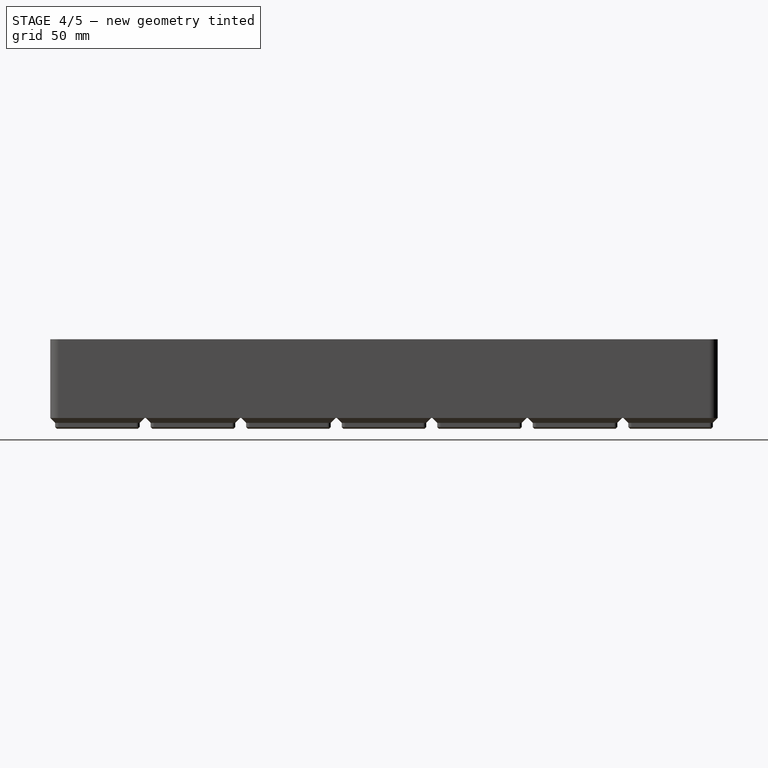
[diagram: stage 4 of 5 — right view after this stage's code; geometry added in this stage tinted green]
FEATURE [PartDesign::Body] Body  label="Gridfinity Tray"
  AllowCompound = false
  Group = -> [Sketch,Pad,Pad001,Pad002,VarSet,LinearArray,LinearArray001,Populate,LatticePattern,Sketch001,Pad003,Sketch002,Sketch003,Binder,AdditiveLoft,Chamfer,Sketch004,Pocket]
  Origin = -> Origin
  Tip = -> Pocket
FEATURE [PartDesign::FeatureBase] Clone  label="Gridfinity tray clone"
  BaseFeature = -> Pocket
  Suppressed = false
FEATURE [Sketcher::SketchObject] Sketch005  label="Sketch 47 x 47"
  ArcFitTolerance = 1e-06
  AttachmentSupport = -> [Clone]
  ExternalGeometry = -> [Clone]
  ExternalTypes = [0]
  FullyConstrained = true
  MakeInternals = false
  MapMode = 5
  Placement = pos=(0,0,17.5) rot=(0,0,1;0rad)
  expr: Constraints[18] = <<Tray1Data>>.GapBetweenSpools
  expr: Constraints[19] = <<Tray1Data>>.GapBetweenSpools
  sketch-geometry (7):
    g0: LineSegment StartX=-13.15 StartY=-13.15 StartZ=0 EndX=34.35 EndY=-13.15 EndZ=0
    g1: LineSegment StartX=34.35 StartY=-13.15 StartZ=0 EndX=34.35 EndY=7.1 EndZ=0
    g2: LineSegment StartX=34.35 StartY=7.1 StartZ=0 EndX=-13.15 EndY=7.1 EndZ=0
    g3: LineSegment StartX=-13.15 StartY=7.1 StartZ=0 EndX=-13.15 EndY=-13.15 EndZ=0
    g4: LineSegment [constr] StartX=-13.15 StartY=7.1 StartZ=0 EndX=-13.15 EndY=27.35 EndZ=0
    g5: LineSegment [constr] StartX=-13.15 StartY=27.35 StartZ=0 EndX=34.35 EndY=27.35 EndZ=0
    g6: LineSegment [constr] StartX=34.35 StartY=27.35 StartZ=0 EndX=34.35 EndY=7.1 EndZ=0
  constraints (20):
    c: Coincident(g0,g1)
    c: Coincident(g1,g2)
    c: Coincident(g2,g3)
    c: Coincident(g3,g0)
    c: Horizontal(g0)
    c: Horizontal(g2)
    c: Vertical(g1)
    c: Vertical(g3)
    c: DistanceX(g2,g2) = 47.5
    c: Coincident(g2,g4)
    c: Vertical(g4)
    c: Coincident(g4,g5)
    c: Horizontal(g5)
    c: Coincident(g5,g6)
    c: Coincident(g6,g1)
    c: Vertical(g6)
    c: Equal(g6,g1)
    c: DistanceY(g0,g5) = 40.5  'Spool1Width'
    c: DistanceX(g-3,g0) = 5
    c: DistanceY(g-3,g0) = 5
FEATURE [PartDesign::Groove] Groove  label="47 x 40 spool"
  Angle = 360
  Angle2 = 60
  Axis = (-1,0,0)
  Base = (34.35,7.1,17.5)
  BaseFeature = -> Clone
  Profile = -> Sketch005
  ReferenceAxis = -> Sketch005 [Edge3]
  Suppressed = false
  Type = 0
FEATURE [PartDesign::LinearPattern] LinearPattern
  BaseFeature = -> Groove
  Direction = -> Sketch005 [V_Axis]
  Length = 91
  Length2 = 100
  Mode = 1
  Mode2 = 0
  Occurrences = 3
  Occurrences2 = 1
  Offset = 45.5
  Offset2 = 10
  Originals = -> [Groove]
  Reversed2 = false
  SpacingPattern = [0]
  SpacingPattern2 = [0]
  Spacings = [-1,-1]
  Suppressed = false
  TransformMode = 0
  expr: Offset = Sketch005.Constraints.Spool1Width + <<Tray1Data>>.GapBetweenSpools
FEATURE [Sketcher::SketchObject] Sketch007  label="Sketch 56 x 32.33 spool"
  ArcFitTolerance = 1e-06
  ExternalGeometry = -> [LinearPattern]
  ExternalTypes = [0]
  FullyConstrained = true
  MakeInternals = false
  MapMode = 5
  Placement = pos=(0,0,28) rot=(0,0,1;0rad)
  expr: Constraints[19] = <<Tray1Data>>.GapBetweenSpools
  sketch-geometry (7):
    g0: LineSegment StartX=40.65 StartY=-13.15 StartZ=0 EndX=97.15 EndY=-13.15 EndZ=0
    g1: LineSegment StartX=97.15 StartY=-13.15 StartZ=0 EndX=97.15 EndY=3.265 EndZ=0
    g2: LineSegment StartX=97.15 StartY=3.265 StartZ=0 EndX=40.65 EndY=3.265 EndZ=0
    g3: LineSegment StartX=40.65 StartY=3.265 StartZ=0 EndX=40.65 EndY=-13.15 EndZ=0
    g4: LineSegment [constr] StartX=40.65 StartY=3.265 StartZ=0 EndX=40.65 EndY=19.68 EndZ=0
    g5: LineSegment [constr] StartX=40.65 StartY=19.68 StartZ=0 EndX=97.15 EndY=19.68 EndZ=0
    g6: LineSegment [constr] StartX=97.15 StartY=19.68 StartZ=0 EndX=97.15 EndY=3.265 EndZ=0
  constraints (20):
    c: Coincident(g0,g1)
    c: Coincident(g1,g2)
    c: Coincident(g2,g3)
    c: Coincident(g3,g0)
    c: Horizontal(g0)
    c: Horizontal(g2)
    c: Vertical(g1)
    c: Vertical(g3)
    c: Distance(g1,g3) = 56.5
    c: Horizontal(g-3,g0)
    c: Coincident(g2,g4)
    c: Vertical(g4)
    c: Coincident(g4,g5)
    c: Horizontal(g5)
    c: Coincident(g5,g6)
    c: Coincident(g6,g1)
    c: Vertical(g6)
    c: Equal(g6,g1)
    c: DistanceY(g0,g5) = 32.83  'Width56x32_33Spool'
    c: DistanceX(g0,g-4) = 5
FEATURE [App::VarSet] VarSet001  label="Tray1Data"
  GapBetweenSpools = 5
FEATURE [PartDesign::Groove] Groove002  label="56 x 32.33 spool"
  Angle = 360
  Angle2 = 60
  Axis = (-1,0,0)
  Base = (97.15,3.265,28)
  BaseFeature = -> LinearPattern
  Profile = -> Sketch007
  ReferenceAxis = -> Sketch007 [Edge3]
  Suppressed = false
  Type = 0
FEATURE [PartDesign::LinearPattern] LinearPattern004
  BaseFeature = -> Chamfer001
  Direction = -> Y_Axis002
  Direction2 = -> X_Axis002
  Length = 245
  Length2 = 100
  Mode = 1
  Mode2 = 0
  Occurrences = 8
  Occurrences2 = 1
  Offset = 35
  Offset2 = 100
  Originals = -> [Chamfer001,Groove005]
  Reversed2 = false
  SpacingPattern = [35]
  SpacingPattern2 = [0]
  Spacings = [-1,-1,-1,-1,-1,-1,-1]
  Suppressed = false
  TransformMode = 0
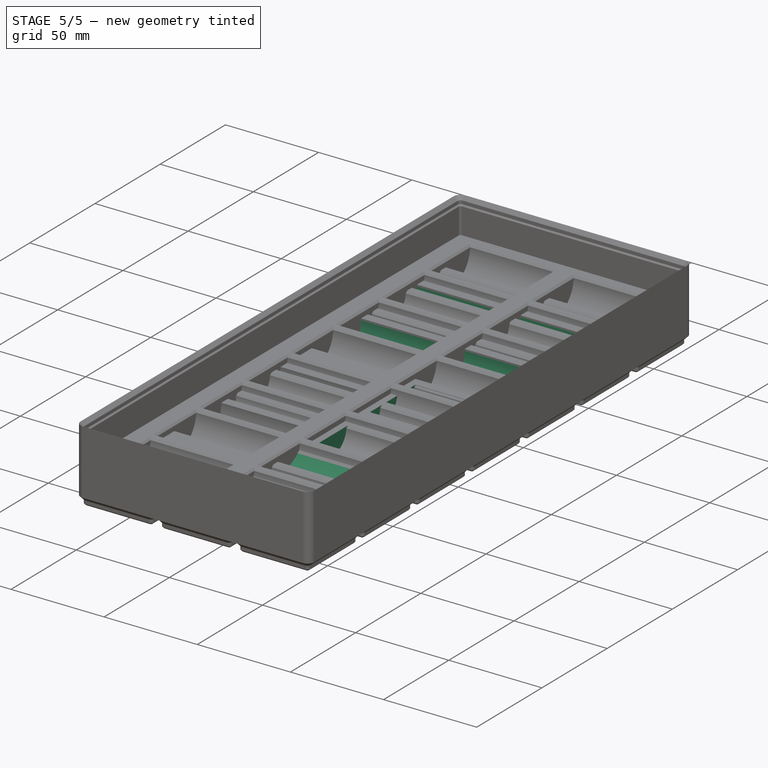
[diagram: stage 5 of 5 — iso view after this stage's code; geometry added in this stage tinted green]
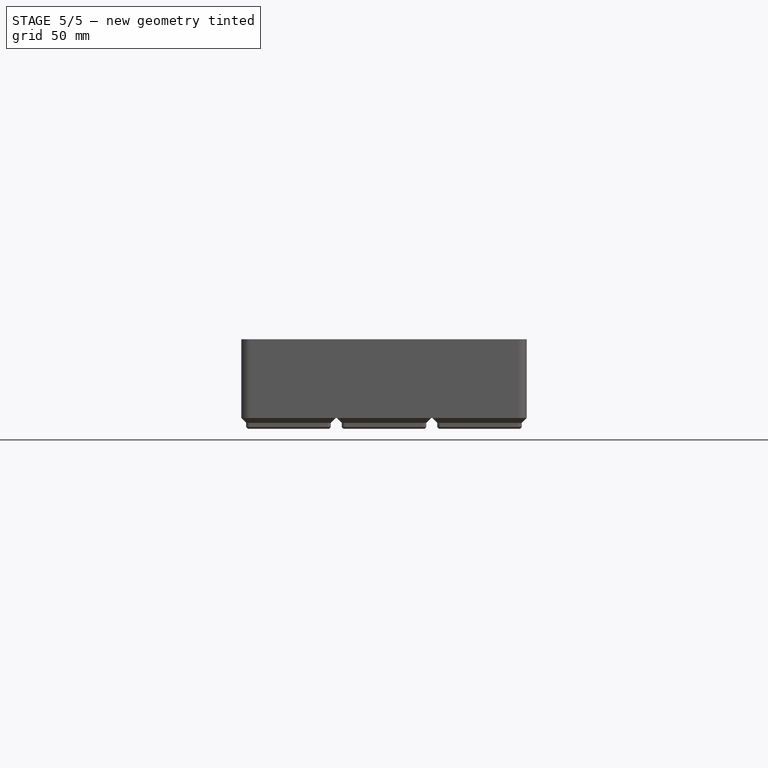
[diagram: stage 5 of 5 — front view after this stage's code; geometry added in this stage tinted green]
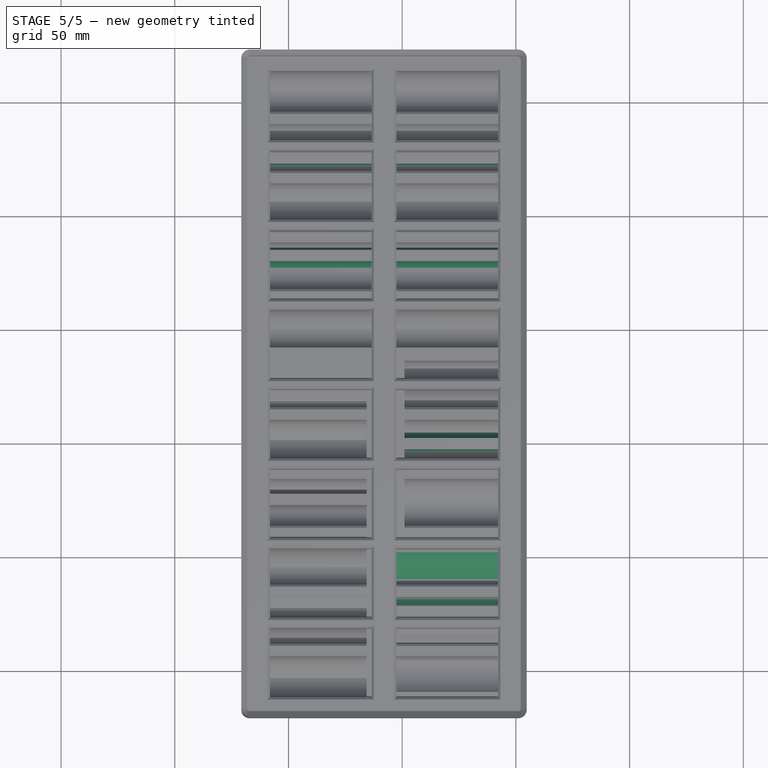
[diagram: stage 5 of 5 — top view after this stage's code; geometry added in this stage tinted green]
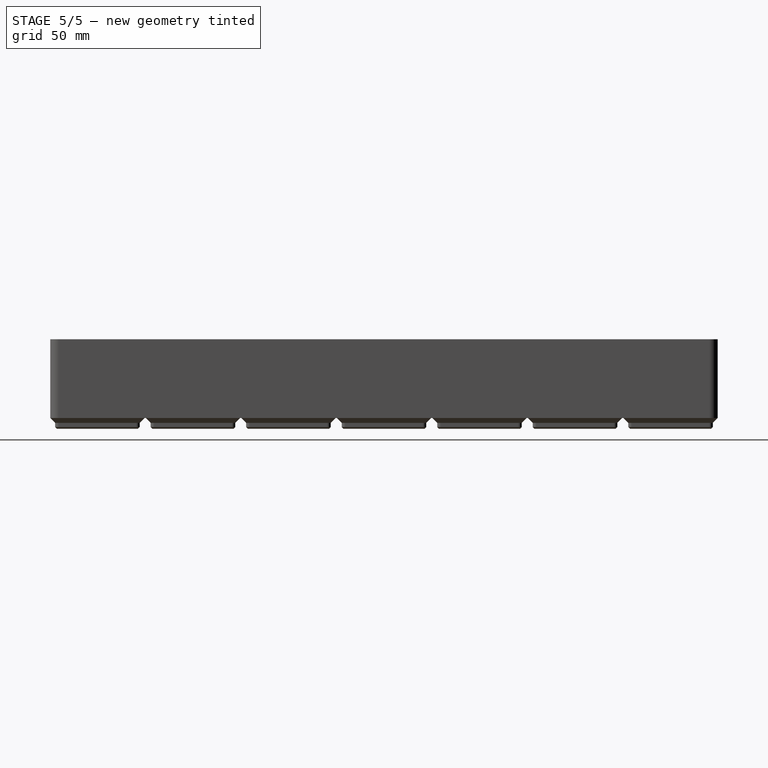
[diagram: stage 5 of 5 — right view after this stage's code; geometry added in this stage tinted green]
FEATURE [PartDesign::LinearPattern] LinearPattern001
  BaseFeature = -> Groove002
  Direction = -> Sketch007 [V_Axis]
  Length = 37.83
  Length2 = 100
  Mode = 1
  Mode2 = 0
  Occurrences = 2
  Occurrences2 = 1
  Offset = 37.83
  Offset2 = 10
  Originals = -> [Groove002]
  Reversed2 = false
  SpacingPattern = [0]
  SpacingPattern2 = [0]
  Spacings = [-1]
  Suppressed = false
  TransformMode = 0
  expr: Offset = <<Sketch 56 x 32.33 spool>>.Constraints.Width56x32_33Spool + <<Tray1Data>>.GapBetweenSpools
FEATURE [Sketcher::SketchObject] Sketch008  label="Sketch 45_63 x 34_33"
  ArcFitTolerance = 1e-06
  AttachmentSupport = -> [LinearPattern001]
  ExternalTypes = [0]
  FullyConstrained = true
  MakeInternals = false
  MapMode = 5
  Placement = pos=(0,0,17.5) rot=(0,0,1;0rad)
  expr: Constraints[19] = <<Tray1Data>>.GapBetweenSpools
  sketch-geometry (7):
    g0: LineSegment StartX=51.02 StartY=62.51 StartZ=0 EndX=97.15 EndY=62.51 EndZ=0
    g1: LineSegment StartX=97.15 StartY=62.51 StartZ=0 EndX=97.15 EndY=79.925 EndZ=0
    g2: LineSegment StartX=97.15 StartY=79.925 StartZ=0 EndX=51.02 EndY=79.925 EndZ=0
    g3: LineSegment StartX=51.02 StartY=79.925 StartZ=0 EndX=51.02 EndY=62.51 EndZ=0
    g4: LineSegment [constr] StartX=51.02 StartY=79.925 StartZ=0 EndX=51.02 EndY=97.34 EndZ=0
    g5: LineSegment [constr] StartX=51.02 StartY=97.34 StartZ=0 EndX=97.15 EndY=97.34 EndZ=0
    g6: LineSegment [constr] StartX=97.15 StartY=97.34 StartZ=0 EndX=97.15 EndY=79.925 EndZ=0
  constraints (20):
    c: Coincident(g0,g1)
    c: Coincident(g1,g2)
    c: Coincident(g2,g3)
    c: Coincident(g3,g0)
    c: Horizontal(g0)
    c: Horizontal(g2)
    c: Vertical(g1)
    c: Vertical(g3)
    c: Distance(g1,g3) = 46.13
    c: Coincident(g2,g4)
    c: Vertical(g4)
    c: Coincident(g4,g5)
    c: Horizontal(g5)
    c: Coincident(g5,g6)
    c: Coincident(g6,g1)
    c: Vertical(g6)
    c: Equal(g6,g1)
    c: DistanceY(g0,g4) = 34.83  'Width'
    c: Vertical(g-3,g0)
    c: DistanceY(g-3,g0) = 5
FEATURE [PartDesign::Groove] Groove003  label="45.63 x 34.33 spool"
  Angle = 360
  Angle2 = 60
  Axis = (-1,0,0)
  Base = (97.15,79.925,17.5)
  BaseFeature = -> LinearPattern001
  Profile = -> Sketch008
  ReferenceAxis = -> Sketch008 [Edge3]
  Suppressed = false
  Type = 0
FEATURE [PartDesign::LinearPattern] LinearPattern002
  BaseFeature = -> Groove003
  Direction = -> Sketch008 [V_Axis]
  Length = 39.83
  Length2 = 100
  Mode = 0
  Mode2 = 0
  Occurrences = 2
  Occurrences2 = 1
  Offset = 39.83
  Offset2 = 10
  Originals = -> [Groove003]
  Reversed2 = false
  SpacingPattern = [0]
  SpacingPattern2 = [0]
  Spacings = [-1]
  Suppressed = false
  TransformMode = 0
  expr: Length = <<Tray1Data>>.GapBetweenSpools + <<Sketch 45_63 x 34_33>>.Constraints.Width
FEATURE [Sketcher::SketchObject] Sketch009  label="Sketch 52_83 x 37_40"
  ArcFitTolerance = 1e-06
  AttachmentSupport = -> [LinearPattern002]
  ExternalGeometry = -> [LinearPattern002]
  ExternalTypes = [0]
  FullyConstrained = true
  MakeInternals = false
  MapMode = 5
  Placement = pos=(0,0,17.5) rot=(0,0,1;0rad)
  expr: Constraints[31] = <<Tray1Data>>.GapBetweenSpools
  sketch-geometry (11):
    g0: LineSegment StartX=-13.15 StartY=142.17 StartZ=0 EndX=40.18 EndY=142.17 EndZ=0
    g1: LineSegment StartX=40.18 StartY=142.17 StartZ=0 EndX=40.18 EndY=161.12 EndZ=0
    g2: LineSegment StartX=40.18 StartY=161.12 StartZ=0 EndX=-13.15 EndY=161.12 EndZ=0
    g3: LineSegment StartX=-13.15 StartY=161.12 StartZ=0 EndX=-13.15 EndY=142.17 EndZ=0
    g4: LineSegment StartX=43.82 StartY=142.17 StartZ=0 EndX=97.15 EndY=142.17 EndZ=0
    g5: LineSegment StartX=97.15 StartY=142.17 StartZ=0 EndX=97.15 EndY=161.12 EndZ=0
    g6: LineSegment StartX=97.15 StartY=161.12 StartZ=0 EndX=43.82 EndY=161.12 EndZ=0
    g7: LineSegment StartX=43.82 StartY=161.12 StartZ=0 EndX=43.82 EndY=142.17 EndZ=0
    g8: LineSegment [constr] StartX=-13.15 StartY=161.12 StartZ=0 EndX=-13.15 EndY=180.07 EndZ=0
    g9: LineSegment [constr] StartX=-13.15 StartY=180.07 StartZ=0 EndX=97.15 EndY=180.07 EndZ=0
    g10: LineSegment [constr] StartX=97.15 StartY=180.07 StartZ=0 EndX=97.15 EndY=161.12 EndZ=0
  constraints (32):
    c: Coincident(g0,g1)
    c: Coincident(g1,g2)
    c: Coincident(g2,g3)
    c: Coincident(g3,g0)
    c: Horizontal(g0)
    c: Horizontal(g2)
    c: Vertical(g1)
    c: Vertical(g3)
    c: Distance(g1,g3) = 53.33
    c: Coincident(g4,g5)
    c: Coincident(g5,g6)
    c: Coincident(g6,g7)
    c: Coincident(g7,g4)
    c: Horizontal(g4)
    c: Horizontal(g6)
    c: Vertical(g5)
    c: Vertical(g7)
    c: Equal(g0,g4)
    c: Vertical(g4,g-3)
    c: Horizontal(g0,g4)
    c: Horizontal(g1,g6)
    c: Coincident(g2,g8)
    c: Vertical(g8)
    c: Coincident(g8,g9)
    c: Horizontal(g9)
    c: Coincident(g9,g10)
    c: Coincident(g10,g5)
    c: Vertical(g10)
    c: Equal(g8,g3)
    c: DistanceY(g0,g8) = 37.9  'Width'
    c: Vertical(g0,g-4)
    c: DistanceY(g-3,g4) = 5
FEATURE [PartDesign::Groove] Groove004  label="52.83 x 37.40 spool"
  Angle = 360
  Angle2 = 60
  Axis = (-1,0,0)
  Base = (40.18,161.12,17.5)
  BaseFeature = -> LinearPattern002
  Profile = -> Sketch009
  ReferenceAxis = -> Sketch009 [Edge3]
  Suppressed = false
  Type = 0
FEATURE [PartDesign::LinearPattern] LinearPattern003
  BaseFeature = -> Groove004
  Direction = -> Sketch009 [V_Axis]
  Length = 85.8
  Length2 = 100
  Mode = 1
  Mode2 = 0
  Occurrences = 3
  Occurrences2 = 1
  Offset = 42.9
  Offset2 = 10
  Originals = -> [Groove004]
  Reversed2 = false
  SpacingPattern = [0]
  SpacingPattern2 = [0]
  Spacings = [-1,-1]
  Suppressed = false
  TransformMode = 0
  expr: Offset = <<Tray1Data>>.GapBetweenSpools + <<Sketch 52_83 x 37_40>>.Constraints.Width
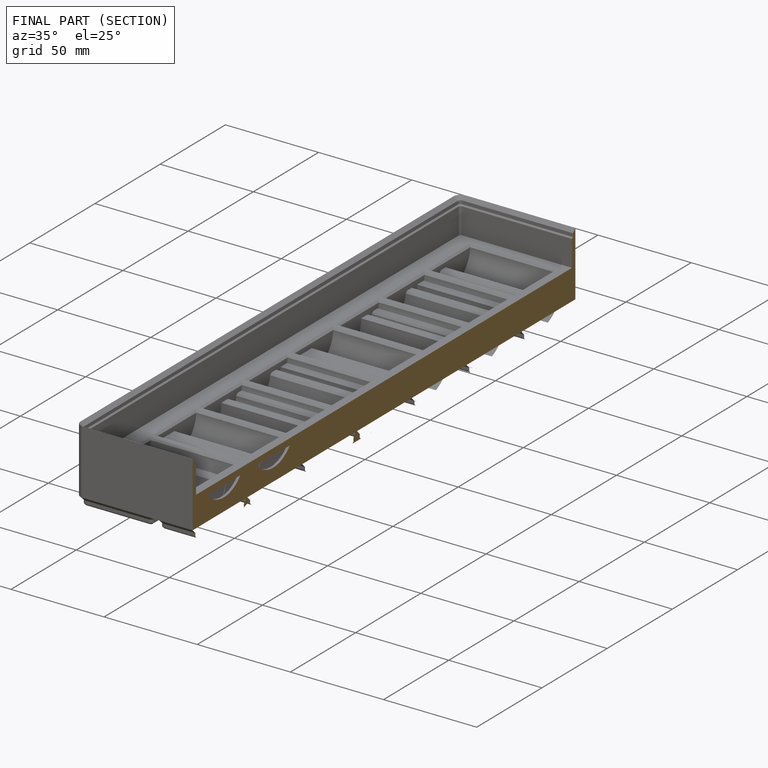
[diagram: finished part — half-section view (interior)]
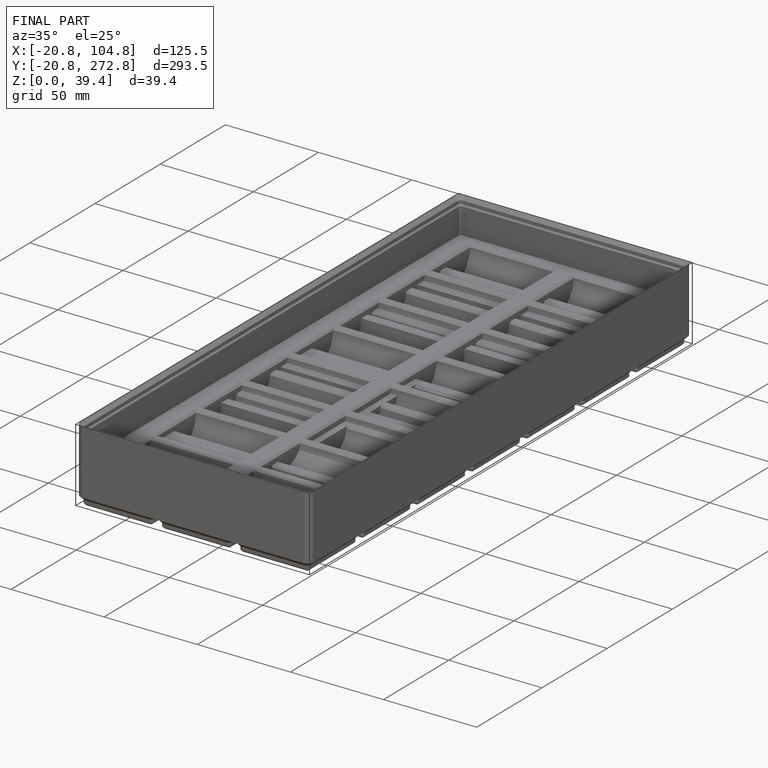
[diagram: finished part — iso view with bounding-box wireframe]
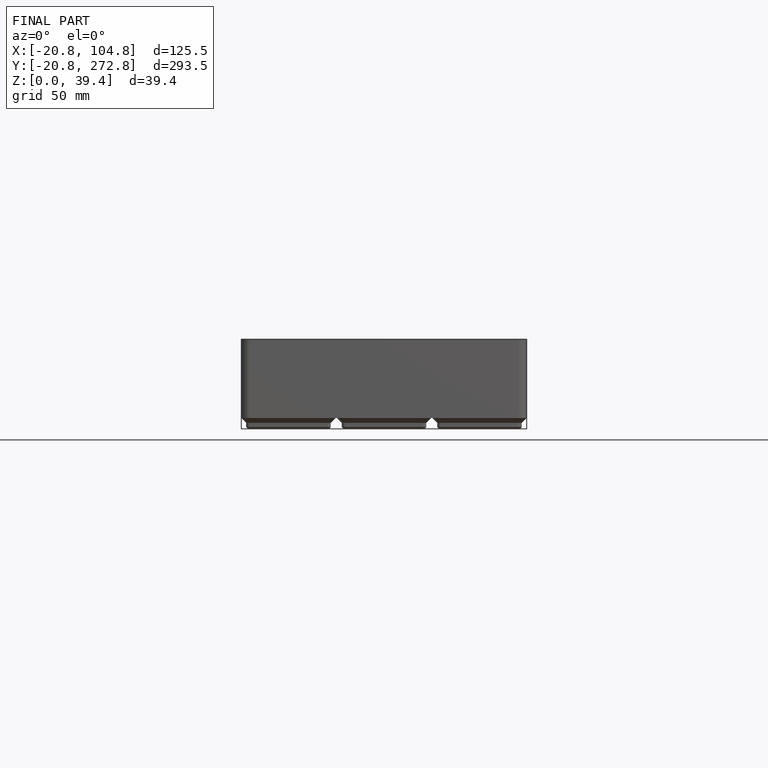
[diagram: finished part — front view with bounding-box wireframe]
